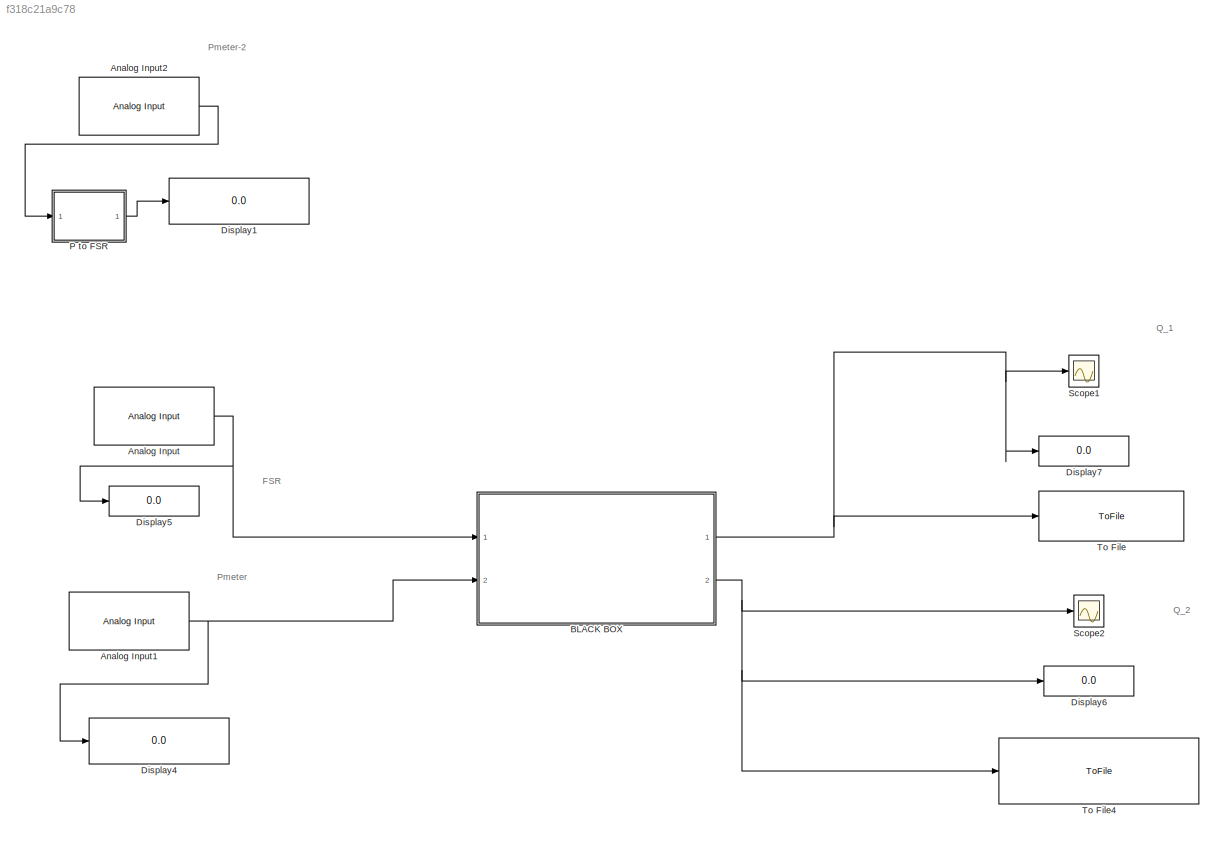
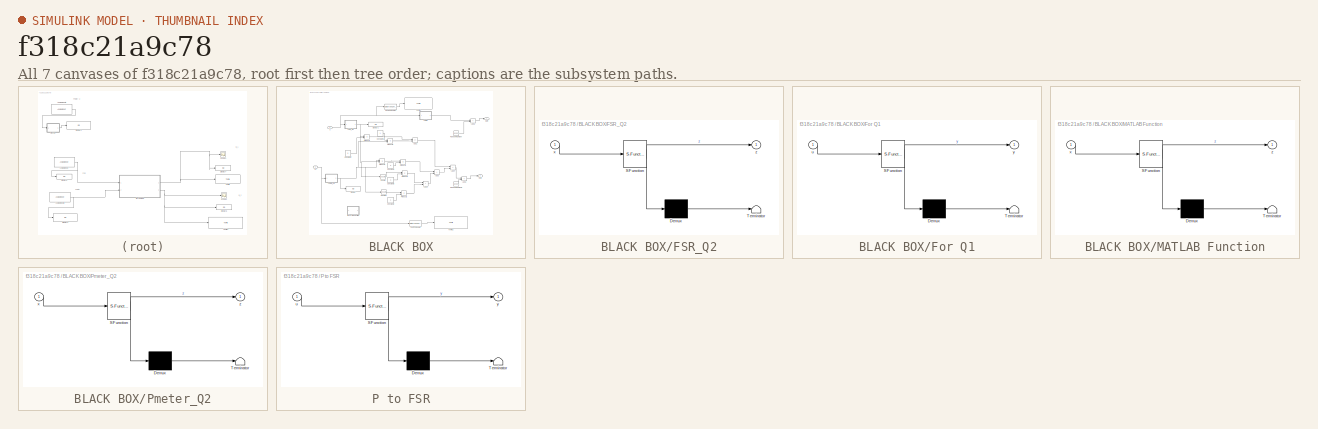
[diagram: thumbnail index - all 7 canvases of the model, root first then tree order]
MODEL slx_f318c21a9c78
KIND model
CONFIG AbsTol = auto
CONFIG EnableMultiTasking = on
CONFIG FixedStep = auto
CONFIG MaxStep = auto
CONFIG MinStep = auto
CONFIG RelTol = 1e-3
CONFIG SampleTimeConstraint = Unconstrained
CONFIG SolverName = FixedStepAuto
CONFIG StartTime = 0.0
CONFIG StopTime = inf
BLOCK [Reference] Analog Input  REF=arduinolib/Analog Input
  Ports = [0, 1]
  SourceBlock = arduinolib/Analog Input
  SourceProductBaseCode = ARDUINO
  SourceType = Arduino Analog Input
BLOCK [Reference] Analog Input1  REF=arduinolib/Analog Input
  Ports = [0, 1]
  SourceBlock = arduinolib/Analog Input
  SourceProductBaseCode = ARDUINO
  SourceType = Arduino Analog Input
BLOCK [Reference] Analog Input2  REF=arduinolib/Analog Input
  Ports = [0, 1]
  SourceBlock = arduinolib/Analog Input
  SourceProductBaseCode = ARDUINO
  SourceType = Arduino Analog Input
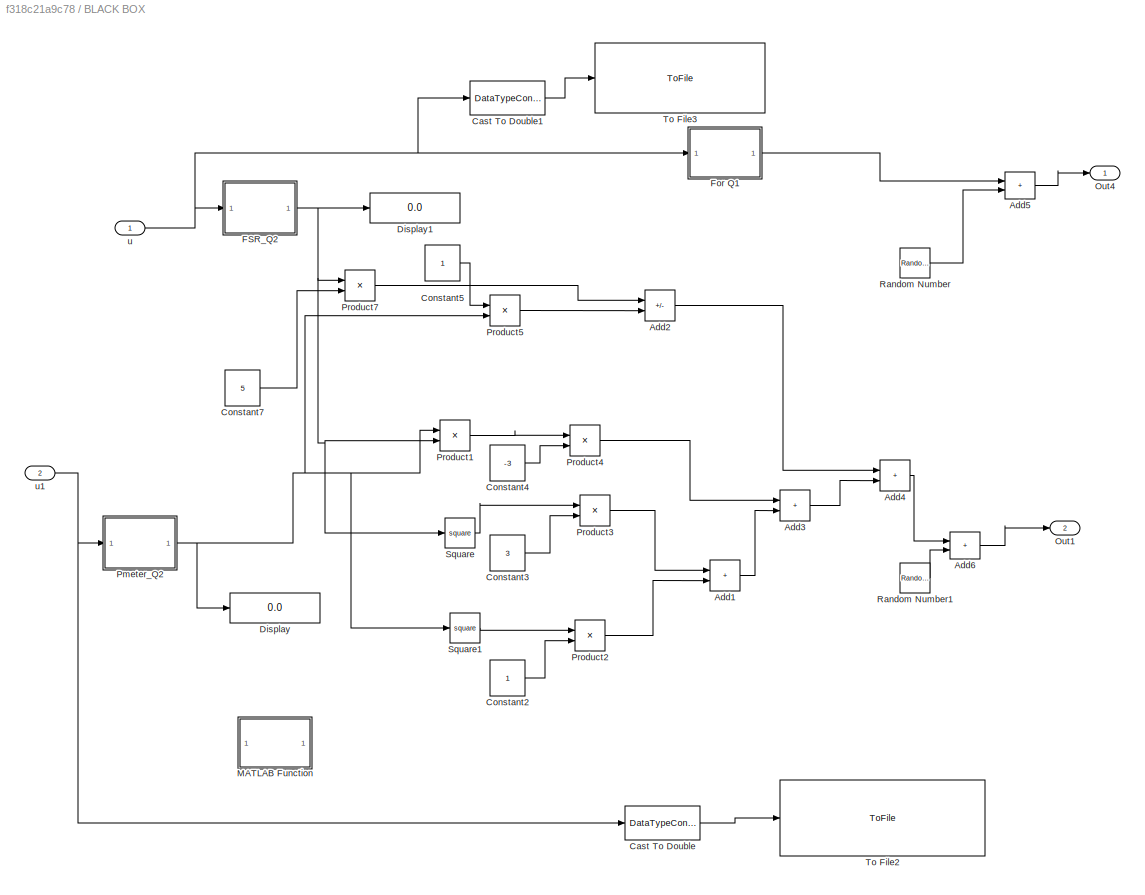
BLOCK [SubSystem] BLACK BOX
  Ports = [2, 2]
  RequestExecContextInheritance = off
BLOCK [Sum] BLACK BOX/Add1
  IconShape = rectangular
  Ports = [2, 1]
BLOCK [Sum] BLACK BOX/Add2
  IconShape = rectangular
  Inputs = +-
  Ports = [2, 1]
BLOCK [Sum] BLACK BOX/Add3
  IconShape = rectangular
  Ports = [2, 1]
BLOCK [Sum] BLACK BOX/Add4
  IconShape = rectangular
  Ports = [2, 1]
BLOCK [Sum] BLACK BOX/Add5
  IconShape = rectangular
  Ports = [2, 1]
BLOCK [Sum] BLACK BOX/Add6
  IconShape = rectangular
  Ports = [2, 1]
BLOCK [DataTypeConversion] BLACK BOX/Cast To Double
  OutDataTypeStr = double
  RndMeth = Floor
  SaturateOnIntegerOverflow = off
BLOCK [DataTypeConversion] BLACK BOX/Cast To Double1
  OutDataTypeStr = double
  RndMeth = Floor
  SaturateOnIntegerOverflow = off
BLOCK [Constant] BLACK BOX/Constant2
BLOCK [Constant] BLACK BOX/Constant3
  Value = 3
BLOCK [Constant] BLACK BOX/Constant4
  Value = -3
BLOCK [Constant] BLACK BOX/Constant5
BLOCK [Constant] BLACK BOX/Constant7
  Value = 5
BLOCK [Display] BLACK BOX/Display
  Decimation = 1
  Ports = [1]
BLOCK [Display] BLACK BOX/Display1
  Decimation = 1
  Ports = [1]
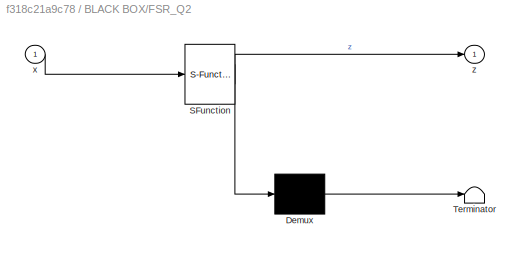
BLOCK [SubSystem] BLACK BOX/FSR_Q2
  ErrorFcn = Stateflow.Translate.translate
  PermitHierarchicalResolution = ExplicitOnly
  Ports = [1, 1]
  RequestExecContextInheritance = off
  SFBlockType = MATLAB Function
  TreatAsAtomicUnit = on
BLOCK [Demux] BLACK BOX/FSR_Q2/ Demux 
  Outputs = 1
  Ports = [1, 1]
BLOCK [S-Function] BLACK BOX/FSR_Q2/ SFunction 
  EnableBusSupport = on
  FunctionName = sf_sfun
  PortCounts = [1 2]
  Ports = [1, 2]
  SFcnIsStateOwnerBlock = off
  SFunctionDeploymentMode = off
  Tag = Stateflow S-Function 1
BLOCK [Terminator] BLACK BOX/FSR_Q2/ Terminator 
BLOCK [Inport] BLACK BOX/FSR_Q2/x
BLOCK [Outport] BLACK BOX/FSR_Q2/z
BLOCK [SubSystem] BLACK BOX/For Q1
  ErrorFcn = Stateflow.Translate.translate
  PermitHierarchicalResolution = ExplicitOnly
  Ports = [1, 1]
  RequestExecContextInheritance = off
  SFBlockType = MATLAB Function
  TreatAsAtomicUnit = on
BLOCK [Demux] BLACK BOX/For Q1/ Demux 
  Outputs = 1
  Ports = [1, 1]
BLOCK [S-Function] BLACK BOX/For Q1/ SFunction 
  EnableBusSupport = on
  FunctionName = sf_sfun
  PortCounts = [1 2]
  Ports = [1, 2]
  SFcnIsStateOwnerBlock = off
  SFunctionDeploymentMode = off
  Tag = Stateflow S-Function 5
BLOCK [Terminator] BLACK BOX/For Q1/ Terminator 
BLOCK [Inport] BLACK BOX/For Q1/u
BLOCK [Outport] BLACK BOX/For Q1/y
BLOCK [SubSystem] BLACK BOX/MATLAB Function
  Commented = on
  ErrorFcn = Stateflow.Translate.translate
  PermitHierarchicalResolution = ExplicitOnly
  Ports = [1, 1]
  RequestExecContextInheritance = off
  SFBlockType = MATLAB Function
  TreatAsAtomicUnit = on
BLOCK [Demux] BLACK BOX/MATLAB Function/ Demux 
  Outputs = 1
  Ports = [1, 1]
BLOCK [S-Function] BLACK BOX/MATLAB Function/ SFunction 
  EnableBusSupport = on
  FunctionName = sf_sfun
  PortCounts = [1 2]
  Ports = [1, 2]
  SFcnIsStateOwnerBlock = off
  SFunctionDeploymentMode = off
  Tag = Stateflow S-Function 2
BLOCK [Terminator] BLACK BOX/MATLAB Function/ Terminator 
BLOCK [Inport] BLACK BOX/MATLAB Function/x
BLOCK [Outport] BLACK BOX/MATLAB Function/z
BLOCK [Outport] BLACK BOX/Out1
  Port = 2
BLOCK [Outport] BLACK BOX/Out4
BLOCK [SubSystem] BLACK BOX/Pmeter_Q2
  ErrorFcn = Stateflow.Translate.translate
  PermitHierarchicalResolution = ExplicitOnly
  Ports = [1, 1]
  RequestExecContextInheritance = off
  SFBlockType = MATLAB Function
  TreatAsAtomicUnit = on
BLOCK [Demux] BLACK BOX/Pmeter_Q2/ Demux 
  Outputs = 1
  Ports = [1, 1]
BLOCK [S-Function] BLACK BOX/Pmeter_Q2/ SFunction 
  EnableBusSupport = on
  FunctionName = sf_sfun
  PortCounts = [1 2]
  Ports = [1, 2]
  SFcnIsStateOwnerBlock = off
  SFunctionDeploymentMode = off
  Tag = Stateflow S-Function 3
BLOCK [Terminator] BLACK BOX/Pmeter_Q2/ Terminator 
BLOCK [Inport] BLACK BOX/Pmeter_Q2/x
BLOCK [Outport] BLACK BOX/Pmeter_Q2/z
BLOCK [Product] BLACK BOX/Product1
  Ports = [2, 1]
BLOCK [Product] BLACK BOX/Product2
  Ports = [2, 1]
BLOCK [Product] BLACK BOX/Product3
  Ports = [2, 1]
BLOCK [Product] BLACK BOX/Product4
  Ports = [2, 1]
BLOCK [Product] BLACK BOX/Product5
  Ports = [2, 1]
BLOCK [Product] BLACK BOX/Product7
  Ports = [2, 1]
BLOCK [RandomNumber] BLACK BOX/Random Number
  SampleTime = 1
  VectorParams1D = off
BLOCK [RandomNumber] BLACK BOX/Random Number1
  SampleTime = 1
  VectorParams1D = off
BLOCK [Math] BLACK BOX/Square
  Operator = square
  Ports = [1, 1]
BLOCK [Math] BLACK BOX/Square1
  Operator = square
  Ports = [1, 1]
BLOCK [ToFile] BLACK BOX/To File2
  Commented = on
  Decimation = 2
  Filename = Data_pmeter_1.mat
  MatrixName = Data_pmeter_1
  Ports = [1]
  SampleTime = 1
BLOCK [ToFile] BLACK BOX/To File3
  Commented = on
  Decimation = 2
  Filename = Data_FSR_5.mat
  MatrixName = Data_FSR_5
  Ports = [1]
  SampleTime = 1
BLOCK [Inport] BLACK BOX/u
BLOCK [Inport] BLACK BOX/u1
  Port = 2
BLOCK [Display] Display1
  Decimation = 1
  Format = long
  Ports = [1]
BLOCK [Display] Display4
  Decimation = 1
  Format = long
  Ports = [1]
BLOCK [Display] Display5
  Decimation = 1
  Ports = [1]
BLOCK [Display] Display6
  Decimation = 1
  Ports = [1]
BLOCK [Display] Display7
  Decimation = 1
  Ports = [1]
BLOCK [SubSystem] P to FSR
  ErrorFcn = Stateflow.Translate.translate
  PermitHierarchicalResolution = ExplicitOnly
  Ports = [1, 1]
  RequestExecContextInheritance = off
  SFBlockType = MATLAB Function
  TreatAsAtomicUnit = on
BLOCK [Demux] P to FSR/ Demux 
  Outputs = 1
  Ports = [1, 1]
BLOCK [S-Function] P to FSR/ SFunction 
  EnableBusSupport = on
  FunctionName = sf_sfun
  PortCounts = [1 2]
  Ports = [1, 2]
  SFcnIsStateOwnerBlock = off
  SFunctionDeploymentMode = off
  Tag = Stateflow S-Function 4
BLOCK [Terminator] P to FSR/ Terminator 
BLOCK [Inport] P to FSR/u
BLOCK [Outport] P to FSR/y
BLOCK [Scope] Scope1
  Floating = off
  NumInputPorts = 1
  Ports = [1]
  ScopeSpecificationString = Simulink.scopes.TimeScopeBlockCfg('CurrentConfiguration', extmgr.ConfigurationSet(extmgr.Configuration('Core','General UI',true),extmgr.Configuration('Core','Source UI',true),extmgr.Configuration('Sources','WiredSimulink',true,'DataLoggingVariableName','FSR_DATA','DataLogging',true,'DataLoggingDecimateData',true),extmgr.Configuration('Visuals','Time Domain',true,'SerializedDisplays',{struct('MinYL...<+1526ch>
BLOCK [Scope] Scope2
  Floating = off
  NumInputPorts = 1
  Ports = [1]
  ScopeSpecificationString = Simulink.scopes.TimeScopeBlockCfg('CurrentConfiguration', extmgr.ConfigurationSet(extmgr.Configuration('Core','General UI',true),extmgr.Configuration('Core','Source UI',true),extmgr.Configuration('Sources','WiredSimulink',true,'DataLoggingVariableName','ScopeData2','DataLogging',true),extmgr.Configuration('Visuals','Time Domain',true,'SerializedDisplays',{struct('MinYLimReal','454.80407','MaxYLimR...<+1475ch>
BLOCK [ToFile] To File
  Commented = on
  Decimation = 2
  Filename = Q_FSR_300.mat
  MatrixName = Q_FSR_300
  Ports = [1]
  SampleTime = 1
BLOCK [ToFile] To File4
  Commented = on
  Decimation = 2
  Filename = FSR_P_DATA_Q_500.mat
  MatrixName = FSR_P_DATA_Q_500
  Ports = [1]
  SampleTime = 1
ANNOTATION (root): FSR
ANNOTATION (root): Pmeter-2
ANNOTATION (root): Pmeter
ANNOTATION (root): Q_1
ANNOTATION (root): Q_2
NET Analog Input1:1 -> BLACK BOX:2, Display4:1
LINE Analog Input2:1 -> P to FSR:1
NET Analog Input:1 -> BLACK BOX:1, Display5:1
LINE BLACK BOX/Add1:1 -> BLACK BOX/Add3:2
LINE BLACK BOX/Add2:1 -> BLACK BOX/Add4:1
LINE BLACK BOX/Add3:1 -> BLACK BOX/Add4:2
LINE BLACK BOX/Add4:1 -> BLACK BOX/Add6:1
LINE BLACK BOX/Add5:1 -> BLACK BOX/Out4:1
LINE BLACK BOX/Add6:1 -> BLACK BOX/Out1:1
LINE BLACK BOX/Cast To Double1:1 -> BLACK BOX/To File3:1
LINE BLACK BOX/Cast To Double:1 -> BLACK BOX/To File2:1
LINE BLACK BOX/Constant2:1 -> BLACK BOX/Product2:2
LINE BLACK BOX/Constant3:1 -> BLACK BOX/Product3:2
LINE BLACK BOX/Constant4:1 -> BLACK BOX/Product4:2
LINE BLACK BOX/Constant5:1 -> BLACK BOX/Product5:1
LINE BLACK BOX/Constant7:1 -> BLACK BOX/Product7:2
NET BLACK BOX/FSR_Q2:1 -> BLACK BOX/Display1:1, BLACK BOX/Product1:2, BLACK BOX/Product7:1, BLACK BOX/Square:1
LINE BLACK BOX/For Q1:1 -> BLACK BOX/Add5:1
NET BLACK BOX/Pmeter_Q2:1 -> BLACK BOX/Display:1, BLACK BOX/Product1:1, BLACK BOX/Product5:2, BLACK BOX/Square1:1
LINE BLACK BOX/Product1:1 -> BLACK BOX/Product4:1
LINE BLACK BOX/Product2:1 -> BLACK BOX/Add1:2
LINE BLACK BOX/Product3:1 -> BLACK BOX/Add1:1
LINE BLACK BOX/Product4:1 -> BLACK BOX/Add3:1
LINE BLACK BOX/Product5:1 -> BLACK BOX/Add2:2
LINE BLACK BOX/Product7:1 -> BLACK BOX/Add2:1
LINE BLACK BOX/Random Number1:1 -> BLACK BOX/Add6:2
LINE BLACK BOX/Random Number:1 -> BLACK BOX/Add5:2
LINE BLACK BOX/Square1:1 -> BLACK BOX/Product2:1
LINE BLACK BOX/Square:1 -> BLACK BOX/Product3:1
NET BLACK BOX/u1:1 -> BLACK BOX/Cast To Double:1, BLACK BOX/Pmeter_Q2:1
NET BLACK BOX/u:1 -> BLACK BOX/Cast To Double1:1, BLACK BOX/FSR_Q2:1, BLACK BOX/For Q1:1
NET BLACK BOX:1 -> Display7:1, Scope1:1, To File:1
NET BLACK BOX:2 -> Display6:1, Scope2:1, To File4:1
LINE P to FSR:1 -> Display1:1
note: NET lines group one-source signal fan-out (src -> all destinations, sorted); 1:1 wires keep LINE
CHART BLACK BOX/MATLAB Function states=1 transitions=1
  STATE_LABEL 'eML_blk_kernel()'
  STATE_LABEL 'SCRIPT:\nfunction z = fcn(x)\n% x - FSR; y - Pmeter\nz = 0;\nif x < 730\n    z= 0;\nelseif x >=730 && x<810\n    z=100;\nelseif x >810 && x < 850\n    z= 200;\nelseif x >850 && x < 885\n    z=300;\nelseif x >885 && x < 910\n    z=400;\nelseif x >910\n    z=500;\nend\nz = z;\n'
CHART BLACK BOX/Pmeter_Q2 states=1 transitions=1
  STATE_LABEL 'eML_blk_kernel()'
  STATE_LABEL 'SCRIPT:\nfunction z = fcn(x)\n% x - FSR; y - Pmeter\nz = 0;\nif x < 512\n    z= ((double(x)*0.078) - 40);\nelseif x ==512\n    z=0;\nelseif x >512\n    z= double((x*0.078)- 40);\nend\nz = z;\n'
CHART P to FSR states=1 transitions=1
  STATE_LABEL 'eML_blk_kernel()'
  STATE_LABEL 'SCRIPT:\nfunction y = fcn(u)\nx =u;\nz= 0;\n% x=-1:0.1:1;\nif x < 690\n    z = 100;\nelseif x >=690 && x<740\n    z = 200;\nelseif x >=740 && x<780\n    z= 300;\nelseif x >780 && x < 800\n    z= 400;\nelseif x >800\n    z= 500;\nend\n% plot(u,y)\n% y = z - 6.325;\ny = z;\n'
CHART BLACK BOX/For Q1 states=1 transitions=1
  STATE_LABEL 'eML_blk_kernel()'
  STATE_LABEL 'SCRIPT:\nfunction y = fcn(u)\nx =u;\nz= 0;\n% x=-1:0.1:1;\nif x < 740\n    z=sqrt(double(4*22*x));\nelseif x >=740 && x<780\n    z=(sqrt(double(4*22*x))-(double(x*0.033)));\nelseif x >780 && x < 800\n    z=(sqrt(double(4*22*x))-(double(x*0.063)));\nelseif x >800\n    z=(sqrt(double(4*22*x))-(double(x*0.081)));\nend\n% plot(u,y)\n% y = z - 6.325;\ny = z;\n'
CHART BLACK BOX/FSR_Q2 states=1 transitions=1
  STATE_LABEL 'eML_blk_kernel()'
  STATE_LABEL 'SCRIPT:\nfunction z = fcn(x)\n% x - FSR; y - Pmeter\nz = 0;\nif x < 500\n    z= -25;\nelseif x >=500 && x<680\n    z=-12.5;\nelseif x >=680 && x < 745\n    z= 0;\nelseif x >=745 && x<790\n    z=12.5;\nelseif x >=790\n    z=25;\nend\nz = z;\n'
CHART  states=0 transitions=0
CHART  states=0 transitions=0
CHART  states=0 transitions=0
CHART  states=0 transitions=0
CHART  states=0 transitions=0
